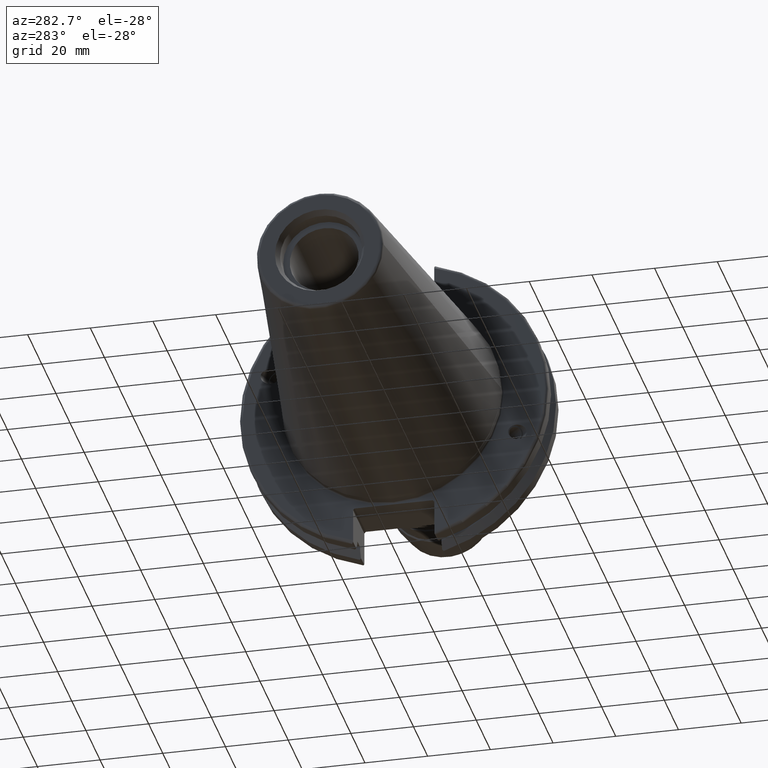
[diagram: clean part render]
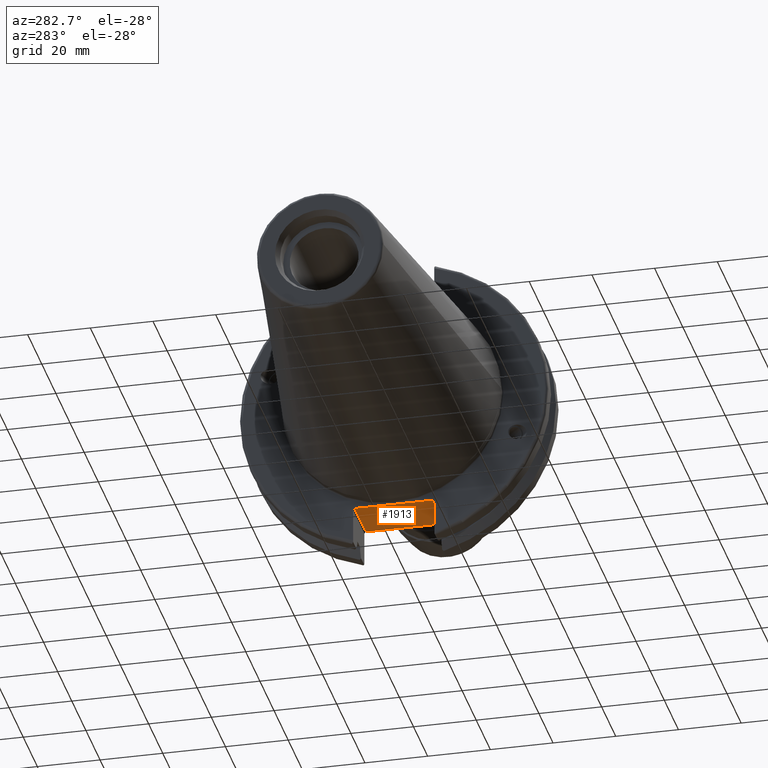
[diagram: same view with one face highlighted and labeled with its STEP entity id]
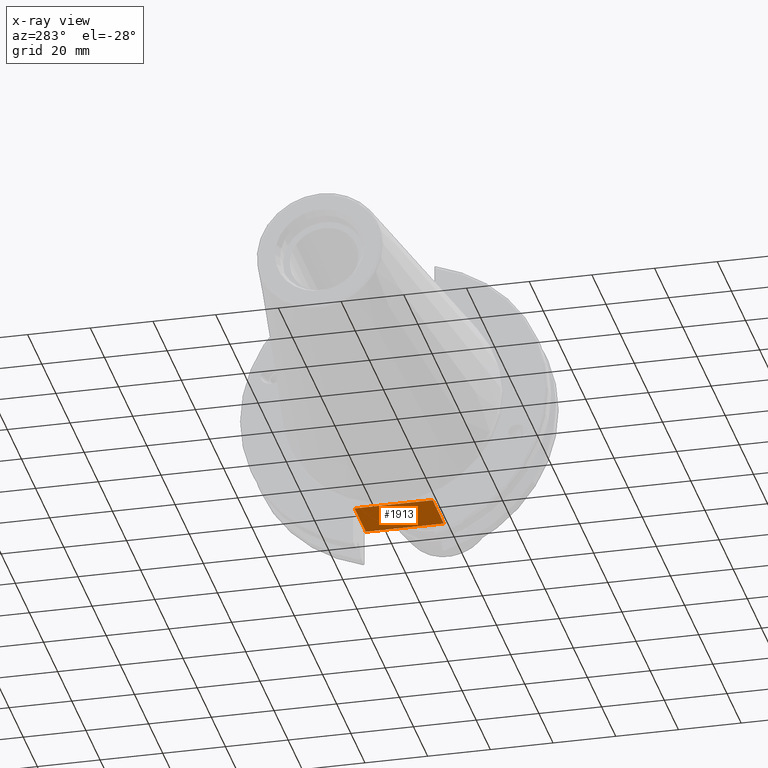
[diagram: x-ray of the same camera — body ghosted, the highlighted face saturated]
A machine part, auxiliary view. The second image highlights one B-rep face of the part: STEP entity #1913.
The next image is the same camera in x-ray: the body ghosted, the highlighted face saturated — about 0% of this face is hidden behind the body in this view.
In plain terms, the highlighted planar face has unit normal (0, 0, 1).
Its self-contained STEP definition (entity closure, byte-faithful):
#55=PLANE('',#2164);
#247=FACE_OUTER_BOUND('',#373,.T.);
#373=EDGE_LOOP('',(#1677,#1678,#1679,#1680));
#425=LINE('',#3042,#529);
#466=LINE('',#3564,#570);
#490=LINE('',#3782,#594);
#491=LINE('',#3784,#595);
#529=VECTOR('',#2413,10.);
#570=VECTOR('',#2612,10.);
#594=VECTOR('',#2694,10.);
#595=VECTOR('',#2697,10.);
#804=VERTEX_POINT('',#3039);
#805=VERTEX_POINT('',#3041);
#888=VERTEX_POINT('',#3561);
#889=VERTEX_POINT('',#3563);
#1024=EDGE_CURVE('',#804,#805,#425,.T.);
#1134=EDGE_CURVE('',#888,#889,#466,.T.);
#1192=EDGE_CURVE('',#805,#888,#490,.T.);
#1193=EDGE_CURVE('',#889,#804,#491,.T.);
#1677=ORIENTED_EDGE('',*,*,#1192,.F.);
#1678=ORIENTED_EDGE('',*,*,#1024,.F.);
#1679=ORIENTED_EDGE('',*,*,#1193,.F.);
#1680=ORIENTED_EDGE('',*,*,#1134,.F.);
#1913=ADVANCED_FACE('',(#247),#55,.F.);
#2164=AXIS2_PLACEMENT_3D('',#3783,#2695,#2696);
#2413=DIRECTION('',(0.,1.,0.));
#2612=DIRECTION('',(0.,-1.,0.));
#2694=DIRECTION('',(-1.,2.63163976207444E-16,0.));
#2695=DIRECTION('center_axis',(0.,0.,1.));
#2696=DIRECTION('ref_axis',(1.,0.,0.));
#2697=DIRECTION('',(1.,2.63163976207445E-16,0.));
#3039=CARTESIAN_POINT('',(19.05,-12.45,-35.306));
#3041=CARTESIAN_POINT('',(19.05,12.45,-35.306));
#3042=CARTESIAN_POINT('',(19.05,-3.33066907387547E-15,-35.306));
#3561=CARTESIAN_POINT('',(3.175,12.45,-35.306));
#3563=CARTESIAN_POINT('',(3.175,-12.45,-35.306));
#3564=CARTESIAN_POINT('',(3.175,24.60625,-35.306));
#3782=CARTESIAN_POINT('',(10.63125,12.45,-35.306));
#3783=CARTESIAN_POINT('Origin',(18.0875,-6.66133814775094E-15,-35.306));
#3784=CARTESIAN_POINT('',(19.06875,-12.45,-35.306));